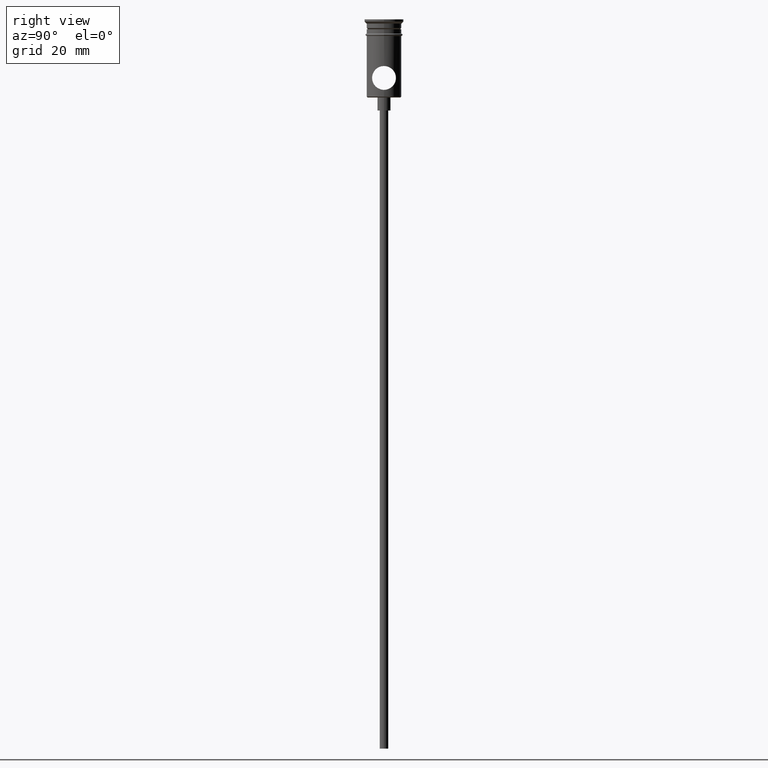
[diagram: clean part render]
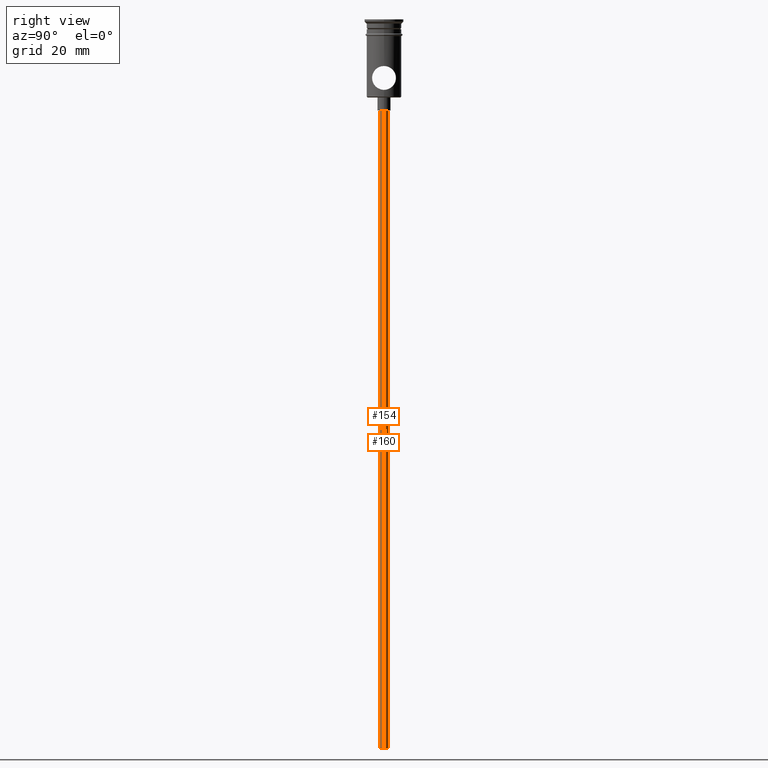
[diagram: same view with one multi-face feature highlighted, each face labeled with its STEP entity id]
A machine part, right view. The highlighted faces form ONE feature: a constant-radius fillet chain: 2 tangent blend faces with common blend radius 1 mm. The faces share edges in the B-rep.
Their STEP definitions:
[1] entity #154 (Cylinder):
#38 = DIRECTION ( 'NONE',  ( 1.000000000000000000, 0.000000000000000000, 0.000000000000000000 ) ) ;
#41 = CARTESIAN_POINT ( 'NONE',  ( 0.9999999999999997780, 0.000000000000000000, -167.9999999999999716 ) ) ;
#112 = CARTESIAN_POINT ( 'NONE',  ( -0.9999999999999997780, 1.224646799147352961E-16, -20.99999999999999645 ) ) ;
#118 = CIRCLE ( 'NONE', #468, 0.9999999999999997780 ) ;
#136 = AXIS2_PLACEMENT_3D ( 'NONE', #148, #1032, #698 ) ;
#148 = CARTESIAN_POINT ( 'NONE',  ( 0.000000000000000000, 0.000000000000000000, -167.9999999999999716 ) ) ;
#154 = ADVANCED_FACE ( 'NONE', ( #993 ), #364, .T. ) ;
#189 = DIRECTION ( 'NONE',  ( -0.000000000000000000, -0.000000000000000000, 1.000000000000000000 ) ) ;
#207 = DIRECTION ( 'NONE',  ( -1.000000000000000000, 0.000000000000000000, 0.000000000000000000 ) ) ;
#211 = CARTESIAN_POINT ( 'NONE',  ( 0.000000000000000000, 0.000000000000000000, -20.99999999999999645 ) ) ;
#221 = VERTEX_POINT ( 'NONE', #1040 ) ;
#266 = VERTEX_POINT ( 'NONE', #271 ) ;
#271 = CARTESIAN_POINT ( 'NONE',  ( 0.9999999999999997780, 0.000000000000000000, -167.9999999999999716 ) ) ;
#272 = VECTOR ( 'NONE', #1014, 1000.000000000000000 ) ;
#313 = AXIS2_PLACEMENT_3D ( 'NONE', #784, #341, #38 ) ;
#341 = DIRECTION ( 'NONE',  ( -0.000000000000000000, -0.000000000000000000, 1.000000000000000000 ) ) ;
#359 = ORIENTED_EDGE ( 'NONE', *, *, #932, .F. ) ;
#364 = CYLINDRICAL_SURFACE ( 'NONE', #313, 0.9999999999999997780 ) ;
#468 = AXIS2_PLACEMENT_3D ( 'NONE', #211, #519, #207 ) ;
#513 = LINE ( 'NONE', #41, #272 ) ;
#519 = DIRECTION ( 'NONE',  ( 0.000000000000000000, 0.000000000000000000, -1.000000000000000000 ) ) ;
#544 = EDGE_CURVE ( 'NONE', #266, #221, #1266, .T. ) ;
#638 = ORIENTED_EDGE ( 'NONE', *, *, #761, .T. ) ;
#682 = ORIENTED_EDGE ( 'NONE', *, *, #816, .T. ) ;
#698 = DIRECTION ( 'NONE',  ( -1.000000000000000000, 0.000000000000000000, 0.000000000000000000 ) ) ;
#761 = EDGE_CURVE ( 'NONE', #992, #876, #118, .T. ) ;
#784 = CARTESIAN_POINT ( 'NONE',  ( 0.000000000000000000, 0.000000000000000000, -167.9999999999999716 ) ) ;
#816 = EDGE_CURVE ( 'NONE', #266, #992, #513, .T. ) ;
#876 = VERTEX_POINT ( 'NONE', #112 ) ;
#882 = EDGE_LOOP ( 'NONE', ( #359, #966, #682, #638 ) ) ;
#888 = VECTOR ( 'NONE', #189, 1000.000000000000000 ) ;
#932 = EDGE_CURVE ( 'NONE', #221, #876, #1174, .T. ) ;
#966 = ORIENTED_EDGE ( 'NONE', *, *, #544, .F. ) ;
#992 = VERTEX_POINT ( 'NONE', #1125 ) ;
#993 = FACE_OUTER_BOUND ( 'NONE', #882, .T. ) ;
#1014 = DIRECTION ( 'NONE',  ( -0.000000000000000000, -0.000000000000000000, 1.000000000000000000 ) ) ;
#1032 = DIRECTION ( 'NONE',  ( 0.000000000000000000, 0.000000000000000000, -1.000000000000000000 ) ) ;
#1040 = CARTESIAN_POINT ( 'NONE',  ( -0.9999999999999997780, 1.224646799147352961E-16, -167.9999999999999716 ) ) ;
#1125 = CARTESIAN_POINT ( 'NONE',  ( 0.9999999999999997780, 0.000000000000000000, -20.99999999999999645 ) ) ;
#1174 = LINE ( 'NONE', #1182, #888 ) ;
#1182 = CARTESIAN_POINT ( 'NONE',  ( -0.9999999999999997780, 1.224646799147352961E-16, -167.9999999999999716 ) ) ;
#1266 = CIRCLE ( 'NONE', #136, 0.9999999999999997780 ) ;
[2] entity #160 (Cylinder):
#41 = CARTESIAN_POINT ( 'NONE',  ( 0.9999999999999997780, 0.000000000000000000, -167.9999999999999716 ) ) ;
#74 = EDGE_LOOP ( 'NONE', ( #129, #453, #123, #298 ) ) ;
#77 = AXIS2_PLACEMENT_3D ( 'NONE', #106, #406, #1069 ) ;
#106 = CARTESIAN_POINT ( 'NONE',  ( 0.000000000000000000, 0.000000000000000000, -167.9999999999999716 ) ) ;
#112 = CARTESIAN_POINT ( 'NONE',  ( -0.9999999999999997780, 1.224646799147352961E-16, -20.99999999999999645 ) ) ;
#123 = ORIENTED_EDGE ( 'NONE', *, *, #227, .T. ) ;
#129 = ORIENTED_EDGE ( 'NONE', *, *, #1107, .F. ) ;
#160 = ADVANCED_FACE ( 'NONE', ( #917 ), #1223, .T. ) ;
#189 = DIRECTION ( 'NONE',  ( -0.000000000000000000, -0.000000000000000000, 1.000000000000000000 ) ) ;
#221 = VERTEX_POINT ( 'NONE', #1040 ) ;
#227 = EDGE_CURVE ( 'NONE', #876, #992, #737, .T. ) ;
#250 = CARTESIAN_POINT ( 'NONE',  ( 0.000000000000000000, 0.000000000000000000, -167.9999999999999716 ) ) ;
#266 = VERTEX_POINT ( 'NONE', #271 ) ;
#271 = CARTESIAN_POINT ( 'NONE',  ( 0.9999999999999997780, 0.000000000000000000, -167.9999999999999716 ) ) ;
#272 = VECTOR ( 'NONE', #1014, 1000.000000000000000 ) ;
#298 = ORIENTED_EDGE ( 'NONE', *, *, #816, .F. ) ;
#406 = DIRECTION ( 'NONE',  ( 0.000000000000000000, 0.000000000000000000, -1.000000000000000000 ) ) ;
#453 = ORIENTED_EDGE ( 'NONE', *, *, #932, .T. ) ;
#496 = AXIS2_PLACEMENT_3D ( 'NONE', #505, #1165, #926 ) ;
#505 = CARTESIAN_POINT ( 'NONE',  ( 0.000000000000000000, 0.000000000000000000, -20.99999999999999645 ) ) ;
#513 = LINE ( 'NONE', #41, #272 ) ;
#599 = AXIS2_PLACEMENT_3D ( 'NONE', #250, #808, #1229 ) ;
#737 = CIRCLE ( 'NONE', #496, 0.9999999999999997780 ) ;
#808 = DIRECTION ( 'NONE',  ( -0.000000000000000000, -0.000000000000000000, 1.000000000000000000 ) ) ;
#816 = EDGE_CURVE ( 'NONE', #266, #992, #513, .T. ) ;
#876 = VERTEX_POINT ( 'NONE', #112 ) ;
#888 = VECTOR ( 'NONE', #189, 1000.000000000000000 ) ;
#917 = FACE_OUTER_BOUND ( 'NONE', #74, .T. ) ;
#926 = DIRECTION ( 'NONE',  ( -1.000000000000000000, 0.000000000000000000, 0.000000000000000000 ) ) ;
#932 = EDGE_CURVE ( 'NONE', #221, #876, #1174, .T. ) ;
#992 = VERTEX_POINT ( 'NONE', #1125 ) ;
#1014 = DIRECTION ( 'NONE',  ( -0.000000000000000000, -0.000000000000000000, 1.000000000000000000 ) ) ;
#1040 = CARTESIAN_POINT ( 'NONE',  ( -0.9999999999999997780, 1.224646799147352961E-16, -167.9999999999999716 ) ) ;
#1069 = DIRECTION ( 'NONE',  ( -1.000000000000000000, 0.000000000000000000, 0.000000000000000000 ) ) ;
#1107 = EDGE_CURVE ( 'NONE', #221, #266, #1380, .T. ) ;
#1125 = CARTESIAN_POINT ( 'NONE',  ( 0.9999999999999997780, 0.000000000000000000, -20.99999999999999645 ) ) ;
#1165 = DIRECTION ( 'NONE',  ( 0.000000000000000000, 0.000000000000000000, -1.000000000000000000 ) ) ;
#1174 = LINE ( 'NONE', #1182, #888 ) ;
#1182 = CARTESIAN_POINT ( 'NONE',  ( -0.9999999999999997780, 1.224646799147352961E-16, -167.9999999999999716 ) ) ;
#1223 = CYLINDRICAL_SURFACE ( 'NONE', #599, 0.9999999999999997780 ) ;
#1229 = DIRECTION ( 'NONE',  ( 1.000000000000000000, 0.000000000000000000, 0.000000000000000000 ) ) ;
#1380 = CIRCLE ( 'NONE', #77, 0.9999999999999997780 ) ;